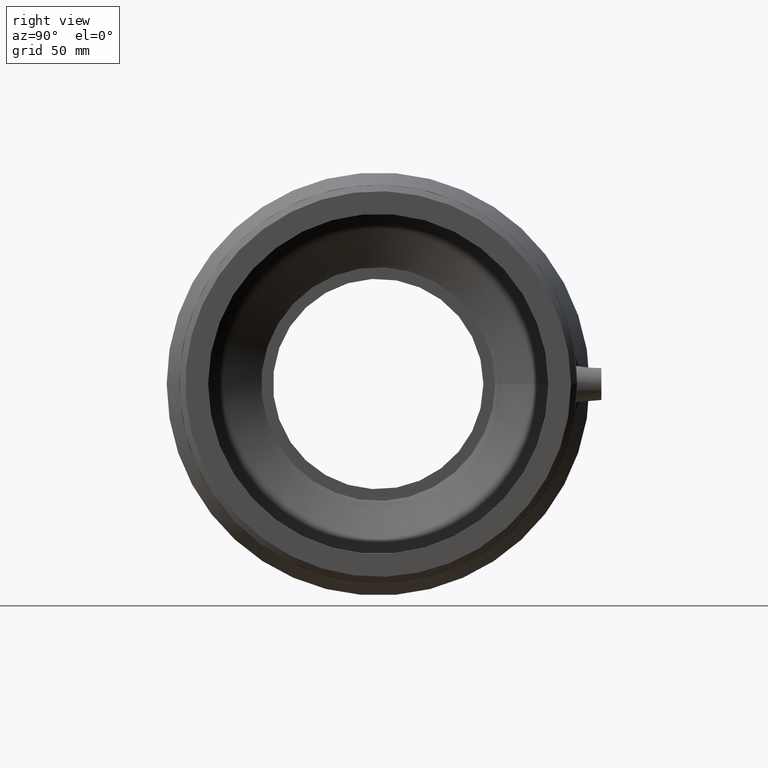
[diagram: clean part render]
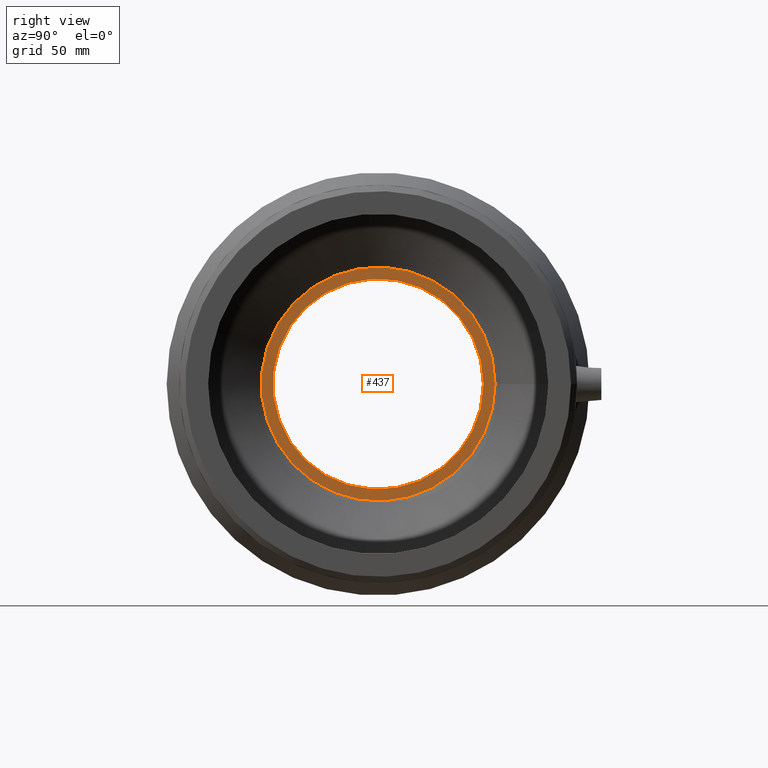
[diagram: same view with one face highlighted and labeled with its STEP entity id]
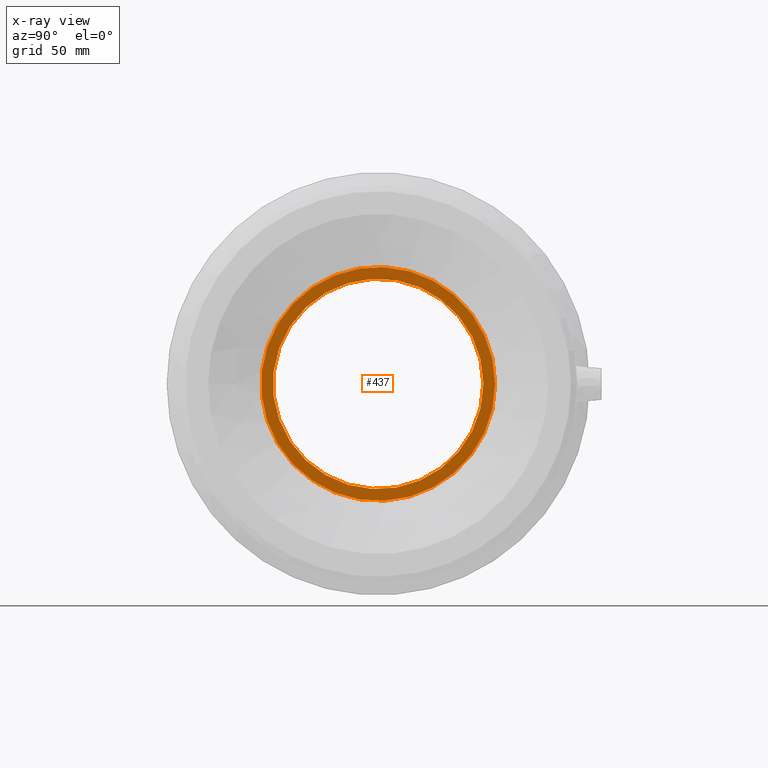
[diagram: x-ray of the same camera — body ghosted, the highlighted face saturated]
A machine part, right view. The second image highlights one B-rep face of the part: STEP entity #437.
The next image is the same camera in x-ray: the body ghosted, the highlighted face saturated — about 0% of this face is hidden behind the body in this view.
In plain terms, the highlighted planar face has unit normal (1, 0, 0).
Its self-contained STEP definition (entity closure, byte-faithful):
#61=FACE_BOUND('',#187,.T.);
#115=FACE_OUTER_BOUND('',#186,.T.);
#186=EDGE_LOOP('',(#379));
#187=EDGE_LOOP('',(#380));
#230=CIRCLE('',#508,55.);
#231=CIRCLE('',#510,49.5);
#269=VERTEX_POINT('',#839);
#270=VERTEX_POINT('',#842);
#308=EDGE_CURVE('',#269,#269,#230,.T.);
#309=EDGE_CURVE('',#270,#270,#231,.T.);
#379=ORIENTED_EDGE('',*,*,#308,.T.);
#380=ORIENTED_EDGE('',*,*,#309,.F.);
#402=PLANE('',#509);
#437=ADVANCED_FACE('',(#115,#61),#402,.T.);
#508=AXIS2_PLACEMENT_3D('',#840,#648,#649);
#509=AXIS2_PLACEMENT_3D('',#841,#650,#651);
#510=AXIS2_PLACEMENT_3D('',#843,#652,#653);
#648=DIRECTION('center_axis',(1.,0.,0.));
#649=DIRECTION('ref_axis',(0.,0.,-1.));
#650=DIRECTION('center_axis',(1.,0.,0.));
#651=DIRECTION('ref_axis',(0.,0.,-1.));
#652=DIRECTION('center_axis',(1.,0.,0.));
#653=DIRECTION('ref_axis',(0.,0.,-1.));
#839=CARTESIAN_POINT('',(-11.45,55.,0.));
#840=CARTESIAN_POINT('Origin',(-11.45,0.,0.));
#841=CARTESIAN_POINT('Origin',(-11.45,49.5,0.));
#842=CARTESIAN_POINT('',(-11.45,49.5,0.));
#843=CARTESIAN_POINT('Origin',(-11.45,0.,0.));